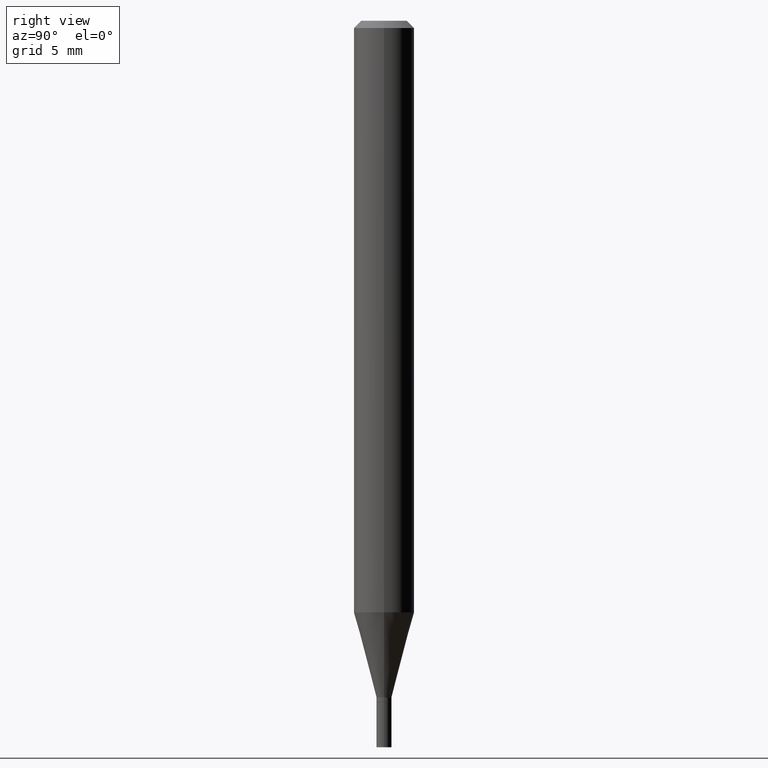
[diagram: clean part render]
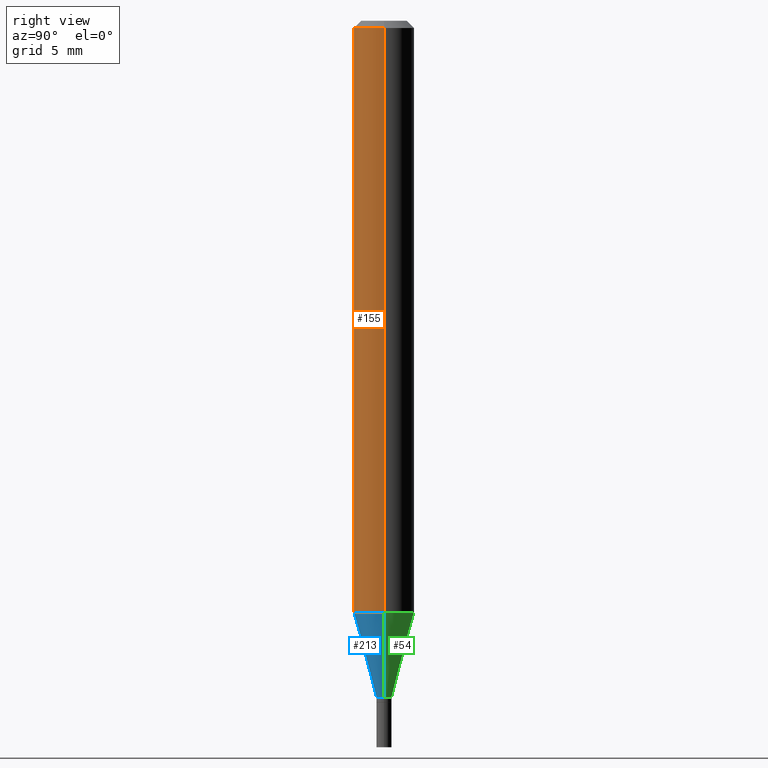
[diagram: same view with three faces highlighted in distinct colors, each labeled with its STEP entity id]
A machine part, right view with three faces highlighted in distinct colors.
Their STEP definitions:

[orange] entity #155 — the highlighted cylindrical surface (edge-blend (fillet) strip) has radius 1.5875 mm, axis along (-0, 0, 1).
#26 = AXIS2_PLACEMENT_3D ( 'NONE', #375, #229, #377 ) ;
#41 = EDGE_CURVE ( 'NONE', #314, #395, #447, .T. ) ;
#57 = AXIS2_PLACEMENT_3D ( 'NONE', #198, #406, #336 ) ;
#64 = LINE ( 'NONE', #313, #289 ) ;
#72 = CARTESIAN_POINT ( 'NONE',  ( 0.06250000000000000000, -4.701606467457928999E-15, -1.221593612044262978 ) ) ;
#116 = LINE ( 'NONE', #254, #423 ) ;
#125 = ORIENTED_EDGE ( 'NONE', *, *, #214, .T. ) ;
#129 = DIRECTION ( 'NONE',  ( -2.445468806185136877E-29, 3.491481338843145188E-15, 1.000000000000000000 ) ) ;
#130 = VERTEX_POINT ( 'NONE', #189 ) ;
#137 = CIRCLE ( 'NONE', #216, 0.06250000000000000000 ) ;
#141 = DIRECTION ( 'NONE',  ( -2.445468806185136597E-29, 3.491481338843145583E-15, 1.000000000000000000 ) ) ;
#155 = ADVANCED_FACE ( 'NONE', ( #303 ), #446, .T. ) ;
#184 = EDGE_CURVE ( 'NONE', #314, #412, #116, .T. ) ;
#189 = CARTESIAN_POINT ( 'NONE',  ( 0.06250000000000000000, -4.888073874380388472E-16, -0.01499999999999999944 ) ) ;
#198 = CARTESIAN_POINT ( 'NONE',  ( 2.987369072089272424E-29, -4.265171300102537329E-15, -1.221593612044262978 ) ) ;
#200 = CARTESIAN_POINT ( 'NONE',  ( -0.06250000000000000000, -3.821082090252475502E-15, -1.221593612044262978 ) ) ;
#205 = ORIENTED_EDGE ( 'NONE', *, *, #184, .F. ) ;
#214 = EDGE_CURVE ( 'NONE', #395, #130, #64, .T. ) ;
#216 = AXIS2_PLACEMENT_3D ( 'NONE', #465, #141, #311 ) ;
#229 = DIRECTION ( 'NONE',  ( -2.445468806185136597E-29, 3.491481338843145583E-15, 1.000000000000000000 ) ) ;
#254 = CARTESIAN_POINT ( 'NONE',  ( -0.06250000000000000000, 4.440892098500626162E-16, -3.074334431409316114E-30 ) ) ;
#263 = ORIENTED_EDGE ( 'NONE', *, *, #338, .F. ) ;
#285 = CARTESIAN_POINT ( 'NONE',  ( -0.06250000000000000000, -1.714682550242529785E-15, -0.01499999999999999944 ) ) ;
#289 = VECTOR ( 'NONE', #129, 39.37007874015748143 ) ;
#293 = ORIENTED_EDGE ( 'NONE', *, *, #41, .T. ) ;
#303 = FACE_OUTER_BOUND ( 'NONE', #332, .T. ) ;
#311 = DIRECTION ( 'NONE',  ( 1.000000000000000000, -6.982962677686266711E-15, 0.000000000000000000 ) ) ;
#313 = CARTESIAN_POINT ( 'NONE',  ( 0.06250000000000000000, -4.364351673553916694E-16, 3.047610484872459871E-30 ) ) ;
#314 = VERTEX_POINT ( 'NONE', #200 ) ;
#332 = EDGE_LOOP ( 'NONE', ( #205, #293, #125, #263 ) ) ;
#336 = DIRECTION ( 'NONE',  ( 1.000000000000000000, -6.982962677686270655E-15, 0.000000000000000000 ) ) ;
#338 = EDGE_CURVE ( 'NONE', #412, #130, #137, .T. ) ;
#375 = CARTESIAN_POINT ( 'NONE',  ( 0.000000000000000000, 0.000000000000000000, 0.000000000000000000 ) ) ;
#377 = DIRECTION ( 'NONE',  ( 1.000000000000000000, -6.982962677686266711E-15, 4.876176775795935793E-29 ) ) ;
#395 = VERTEX_POINT ( 'NONE', #72 ) ;
#403 = DIRECTION ( 'NONE',  ( -2.445468806185136877E-29, 3.491481338843145188E-15, 1.000000000000000000 ) ) ;
#406 = DIRECTION ( 'NONE',  ( -2.445468806185136597E-29, 3.491481338843145583E-15, 1.000000000000000000 ) ) ;
#412 = VERTEX_POINT ( 'NONE', #285 ) ;
#423 = VECTOR ( 'NONE', #403, 39.37007874015748143 ) ;
#446 = CYLINDRICAL_SURFACE ( 'NONE', #26, 0.06250000000000000000 ) ;
#447 = CIRCLE ( 'NONE', #57, 0.06250000000000000000 ) ;
#465 = CARTESIAN_POINT ( 'NONE',  ( 3.668203209277705088E-31, -5.237222008264718399E-17, -0.01499999999999999944 ) ) ;

[blue] entity #213 — the highlighted conical surface has half-angle 15 deg.
#2 = ORIENTED_EDGE ( 'NONE', *, *, #271, .F. ) ;
#4 = CARTESIAN_POINT ( 'NONE',  ( -0.01549999999999992183, -4.294273698286767256E-15, -1.397000000000000242 ) ) ;
#10 = AXIS2_PLACEMENT_3D ( 'NONE', #14, #128, #413 ) ;
#14 = CARTESIAN_POINT ( 'NONE',  ( 3.416319922240636557E-29, -4.877599430363875031E-15, -1.397000000000000242 ) ) ;
#20 = CONICAL_SURFACE ( 'NONE', #274, 0.01549999999999992183, 0.2617993877991499629 ) ;
#41 = EDGE_CURVE ( 'NONE', #314, #395, #447, .T. ) ;
#57 = AXIS2_PLACEMENT_3D ( 'NONE', #198, #406, #336 ) ;
#65 = DIRECTION ( 'NONE',  ( 1.000000000000000000, -6.982962677686273810E-15, 0.000000000000000000 ) ) ;
#72 = CARTESIAN_POINT ( 'NONE',  ( 0.06250000000000000000, -4.701606467457928999E-15, -1.221593612044262978 ) ) ;
#104 = EDGE_CURVE ( 'NONE', #402, #304, #315, .T. ) ;
#128 = DIRECTION ( 'NONE',  ( -2.445468806185136597E-29, 3.491481338843145583E-15, 1.000000000000000000 ) ) ;
#167 = DIRECTION ( 'NONE',  ( -2.445468806185136597E-29, 3.491481338843145583E-15, 1.000000000000000000 ) ) ;
#171 = FACE_OUTER_BOUND ( 'NONE', #199, .T. ) ;
#174 = ORIENTED_EDGE ( 'NONE', *, *, #41, .F. ) ;
#198 = CARTESIAN_POINT ( 'NONE',  ( 2.987369072089272424E-29, -4.265171300102537329E-15, -1.221593612044262978 ) ) ;
#199 = EDGE_LOOP ( 'NONE', ( #2, #224, #279, #174 ) ) ;
#200 = CARTESIAN_POINT ( 'NONE',  ( -0.06250000000000000000, -3.821082090252475502E-15, -1.221593612044262978 ) ) ;
#213 = ADVANCED_FACE ( 'NONE', ( #171 ), #20, .T. ) ;
#224 = ORIENTED_EDGE ( 'NONE', *, *, #104, .T. ) ;
#236 = CARTESIAN_POINT ( 'NONE',  ( 0.01549999999999992183, -4.985835351868011408E-15, -1.397000000000000242 ) ) ;
#260 = VECTOR ( 'NONE', #426, 39.37007874015748854 ) ;
#270 = LINE ( 'NONE', #418, #410 ) ;
#271 = EDGE_CURVE ( 'NONE', #402, #314, #270, .T. ) ;
#272 = CARTESIAN_POINT ( 'NONE',  ( 3.416319922240636557E-29, -4.877599430363875031E-15, -1.397000000000000242 ) ) ;
#274 = AXIS2_PLACEMENT_3D ( 'NONE', #272, #167, #65 ) ;
#276 = CARTESIAN_POINT ( 'NONE',  ( 0.01549999999999992183, -4.985835351868011408E-15, -1.397000000000000242 ) ) ;
#279 = ORIENTED_EDGE ( 'NONE', *, *, #341, .T. ) ;
#304 = VERTEX_POINT ( 'NONE', #236 ) ;
#312 = DIRECTION ( 'NONE',  ( -0.2588190451025212391, 5.211531920934549464E-15, 0.9659258262890679791 ) ) ;
#314 = VERTEX_POINT ( 'NONE', #200 ) ;
#315 = CIRCLE ( 'NONE', #10, 0.01549999999999992183 ) ;
#336 = DIRECTION ( 'NONE',  ( 1.000000000000000000, -6.982962677686270655E-15, 0.000000000000000000 ) ) ;
#341 = EDGE_CURVE ( 'NONE', #304, #395, #458, .T. ) ;
#395 = VERTEX_POINT ( 'NONE', #72 ) ;
#402 = VERTEX_POINT ( 'NONE', #4 ) ;
#406 = DIRECTION ( 'NONE',  ( -2.445468806185136597E-29, 3.491481338843145583E-15, 1.000000000000000000 ) ) ;
#410 = VECTOR ( 'NONE', #312, 39.37007874015748854 ) ;
#413 = DIRECTION ( 'NONE',  ( 1.000000000000000000, -6.982962677686273810E-15, 0.000000000000000000 ) ) ;
#418 = CARTESIAN_POINT ( 'NONE',  ( -0.01549999999999992183, -4.767465306321060588E-15, -1.397000000000000242 ) ) ;
#426 = DIRECTION ( 'NONE',  ( 0.2588190451025212391, 1.565188264969622362E-15, 0.9659258262890679791 ) ) ;
#447 = CIRCLE ( 'NONE', #57, 0.06250000000000000000 ) ;
#458 = LINE ( 'NONE', #276, #260 ) ;

[green] entity #54 — the highlighted conical surface has half-angle 15 deg.
#4 = CARTESIAN_POINT ( 'NONE',  ( -0.01549999999999992183, -4.294273698286767256E-15, -1.397000000000000242 ) ) ;
#16 = DIRECTION ( 'NONE',  ( -2.445468806185136597E-29, 3.491481338843145583E-15, 1.000000000000000000 ) ) ;
#44 = EDGE_CURVE ( 'NONE', #395, #314, #158, .T. ) ;
#50 = DIRECTION ( 'NONE',  ( -2.445468806185136597E-29, 3.491481338843145583E-15, 1.000000000000000000 ) ) ;
#54 = ADVANCED_FACE ( 'NONE', ( #442 ), #398, .T. ) ;
#72 = CARTESIAN_POINT ( 'NONE',  ( 0.06250000000000000000, -4.701606467457928999E-15, -1.221593612044262978 ) ) ;
#74 = ORIENTED_EDGE ( 'NONE', *, *, #271, .T. ) ;
#132 = CARTESIAN_POINT ( 'NONE',  ( 3.416319922240636557E-29, -4.877599430363875031E-15, -1.397000000000000242 ) ) ;
#145 = AXIS2_PLACEMENT_3D ( 'NONE', #307, #16, #187 ) ;
#146 = CIRCLE ( 'NONE', #331, 0.01549999999999992183 ) ;
#158 = CIRCLE ( 'NONE', #231, 0.06250000000000000000 ) ;
#160 = ORIENTED_EDGE ( 'NONE', *, *, #284, .T. ) ;
#187 = DIRECTION ( 'NONE',  ( 1.000000000000000000, -6.982962677686273810E-15, 0.000000000000000000 ) ) ;
#200 = CARTESIAN_POINT ( 'NONE',  ( -0.06250000000000000000, -3.821082090252475502E-15, -1.221593612044262978 ) ) ;
#204 = DIRECTION ( 'NONE',  ( -2.445468806185136597E-29, 3.491481338843145583E-15, 1.000000000000000000 ) ) ;
#231 = AXIS2_PLACEMENT_3D ( 'NONE', #372, #50, #256 ) ;
#236 = CARTESIAN_POINT ( 'NONE',  ( 0.01549999999999992183, -4.985835351868011408E-15, -1.397000000000000242 ) ) ;
#256 = DIRECTION ( 'NONE',  ( 1.000000000000000000, -6.982962677686270655E-15, 0.000000000000000000 ) ) ;
#260 = VECTOR ( 'NONE', #426, 39.37007874015748854 ) ;
#270 = LINE ( 'NONE', #418, #410 ) ;
#271 = EDGE_CURVE ( 'NONE', #402, #314, #270, .T. ) ;
#276 = CARTESIAN_POINT ( 'NONE',  ( 0.01549999999999992183, -4.985835351868011408E-15, -1.397000000000000242 ) ) ;
#284 = EDGE_CURVE ( 'NONE', #304, #402, #146, .T. ) ;
#304 = VERTEX_POINT ( 'NONE', #236 ) ;
#307 = CARTESIAN_POINT ( 'NONE',  ( 3.416319922240636557E-29, -4.877599430363875031E-15, -1.397000000000000242 ) ) ;
#312 = DIRECTION ( 'NONE',  ( -0.2588190451025212391, 5.211531920934549464E-15, 0.9659258262890679791 ) ) ;
#314 = VERTEX_POINT ( 'NONE', #200 ) ;
#331 = AXIS2_PLACEMENT_3D ( 'NONE', #132, #204, #387 ) ;
#341 = EDGE_CURVE ( 'NONE', #304, #395, #458, .T. ) ;
#349 = ORIENTED_EDGE ( 'NONE', *, *, #44, .F. ) ;
#372 = CARTESIAN_POINT ( 'NONE',  ( 2.987369072089272424E-29, -4.265171300102537329E-15, -1.221593612044262978 ) ) ;
#387 = DIRECTION ( 'NONE',  ( 1.000000000000000000, -6.982962677686273810E-15, 0.000000000000000000 ) ) ;
#395 = VERTEX_POINT ( 'NONE', #72 ) ;
#398 = CONICAL_SURFACE ( 'NONE', #145, 0.01549999999999992183, 0.2617993877991499629 ) ;
#402 = VERTEX_POINT ( 'NONE', #4 ) ;
#404 = EDGE_LOOP ( 'NONE', ( #160, #74, #349, #414 ) ) ;
#410 = VECTOR ( 'NONE', #312, 39.37007874015748854 ) ;
#414 = ORIENTED_EDGE ( 'NONE', *, *, #341, .F. ) ;
#418 = CARTESIAN_POINT ( 'NONE',  ( -0.01549999999999992183, -4.767465306321060588E-15, -1.397000000000000242 ) ) ;
#426 = DIRECTION ( 'NONE',  ( 0.2588190451025212391, 1.565188264969622362E-15, 0.9659258262890679791 ) ) ;
#442 = FACE_OUTER_BOUND ( 'NONE', #404, .T. ) ;
#458 = LINE ( 'NONE', #276, #260 ) ;